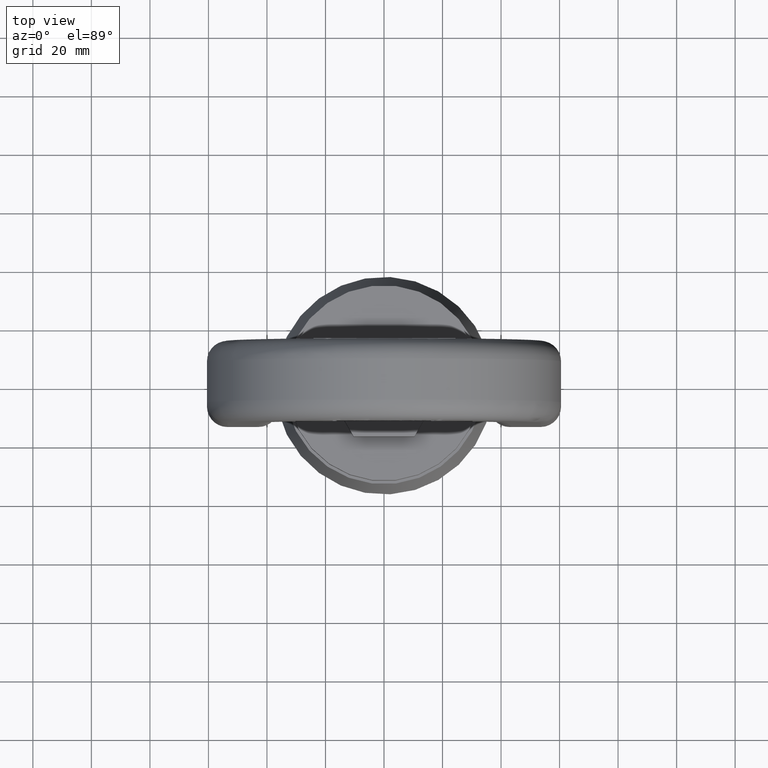
[diagram: clean part render]
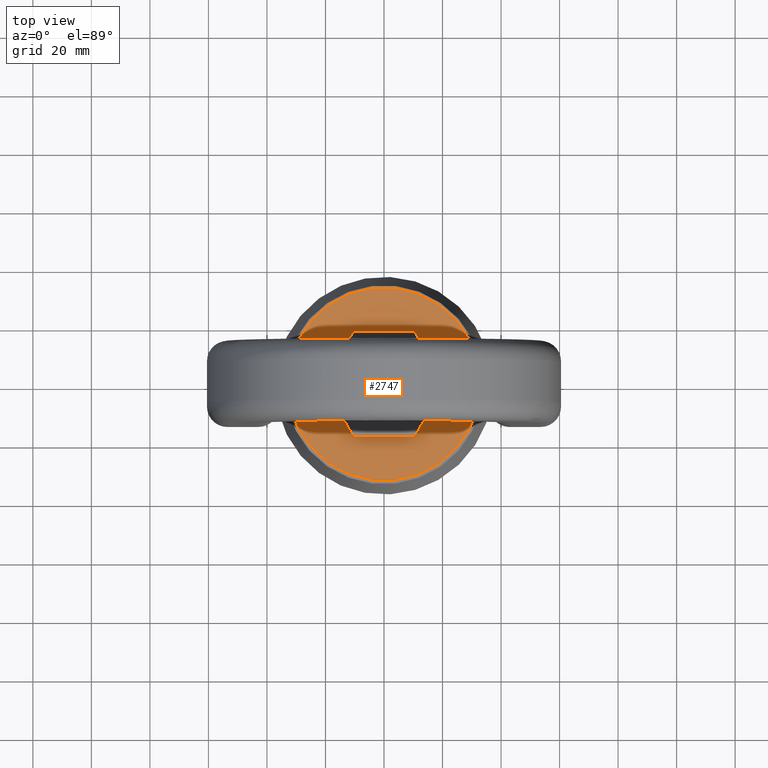
[diagram: same view with one face highlighted and labeled with its STEP entity id]
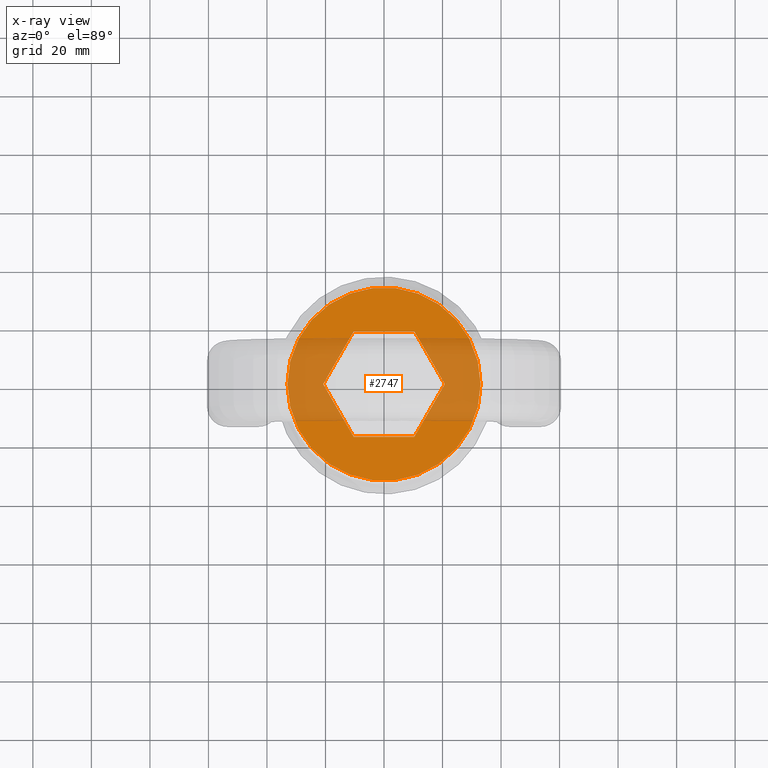
[diagram: x-ray of the same camera — body ghosted, the highlighted face saturated]
A machine part, top view. The second image highlights one B-rep face of the part: STEP entity #2747.
The next image is the same camera in x-ray: the body ghosted, the highlighted face saturated — about 38% of this face is hidden behind the body in this view.
In plain terms, the highlighted planar face has unit normal (0, 0, 1).
Its self-contained STEP definition (entity closure, byte-faithful):
#1755=LINE('',#6619,#2037);
#1756=LINE('',#6622,#2038);
#1757=LINE('',#6624,#2039);
#1758=LINE('',#6626,#2040);
#1759=LINE('',#6628,#2041);
#1760=LINE('',#6630,#2042);
#2037=VECTOR('',#5842,1.);
#2038=VECTOR('',#5843,1.);
#2039=VECTOR('',#5844,1.);
#2040=VECTOR('',#5845,1.);
#2041=VECTOR('',#5846,1.);
#2042=VECTOR('',#5847,1.);
#2628=PLANE('',#5618);
#2747=ADVANCED_FACE('',(#3015,#3016),#2628,.T.);
#3015=FACE_BOUND('',#3078,.T.);
#3016=FACE_BOUND('',#3079,.T.);
#3078=EDGE_LOOP('',(#3354,#3355,#3356,#3357,#3358,#3359));
#3079=EDGE_LOOP('',(#3360));
#3354=ORIENTED_EDGE('',*,*,#4951,.F.);
#3355=ORIENTED_EDGE('',*,*,#4952,.F.);
#3356=ORIENTED_EDGE('',*,*,#4953,.F.);
#3357=ORIENTED_EDGE('',*,*,#4954,.F.);
#3358=ORIENTED_EDGE('',*,*,#4955,.F.);
#3359=ORIENTED_EDGE('',*,*,#4956,.F.);
#3360=ORIENTED_EDGE('',*,*,#4950,.F.);
#4550=VERTEX_POINT('',#6617);
#4551=VERTEX_POINT('',#6620);
#4552=VERTEX_POINT('',#6621);
#4553=VERTEX_POINT('',#6623);
#4554=VERTEX_POINT('',#6625);
#4555=VERTEX_POINT('',#6627);
#4556=VERTEX_POINT('',#6629);
#4950=EDGE_CURVE('',#4550,#4550,#5552,.T.);
#4951=EDGE_CURVE('',#4551,#4552,#1755,.T.);
#4952=EDGE_CURVE('',#4553,#4551,#1756,.T.);
#4953=EDGE_CURVE('',#4554,#4553,#1757,.T.);
#4954=EDGE_CURVE('',#4555,#4554,#1758,.T.);
#4955=EDGE_CURVE('',#4556,#4555,#1759,.T.);
#4956=EDGE_CURVE('',#4552,#4556,#1760,.T.);
#5552=CIRCLE('',#5616,33.);
#5616=AXIS2_PLACEMENT_3D('',#6616,#5838,#5839);
#5618=AXIS2_PLACEMENT_3D('',#6631,#5848,#5849);
#5838=DIRECTION('',(0.,0.,-1.));
#5839=DIRECTION('',(-1.,0.,0.));
#5842=DIRECTION('',(0.5,-0.866025403784439,0.));
#5843=DIRECTION('',(-0.5,-0.866025403784439,0.));
#5844=DIRECTION('',(-1.,0.,0.));
#5845=DIRECTION('',(-0.5,0.866025403784439,0.));
#5846=DIRECTION('',(0.5,0.866025403784439,0.));
#5847=DIRECTION('',(1.,0.,0.));
#5848=DIRECTION('',(0.,0.,1.));
#5849=DIRECTION('',(1.,0.,0.));
#6616=CARTESIAN_POINT('',(0.,0.,54.));
#6617=CARTESIAN_POINT('',(-33.,0.,54.));
#6619=CARTESIAN_POINT('',(-20.7846096908265,0.,54.));
#6620=CARTESIAN_POINT('',(-20.7846096908265,0.,54.));
#6621=CARTESIAN_POINT('',(-10.3923048454133,-18.,54.));
#6622=CARTESIAN_POINT('',(-10.3923048454133,18.,54.));
#6623=CARTESIAN_POINT('',(-10.3923048454133,18.,54.));
#6624=CARTESIAN_POINT('',(10.3923048454133,18.,54.));
#6625=CARTESIAN_POINT('',(10.3923048454133,18.,54.));
#6626=CARTESIAN_POINT('',(20.7846096908265,0.,54.));
#6627=CARTESIAN_POINT('',(20.7846096908265,0.,54.));
#6628=CARTESIAN_POINT('',(10.3923048454133,-18.,54.));
#6629=CARTESIAN_POINT('',(10.3923048454133,-18.,54.));
#6630=CARTESIAN_POINT('',(-10.3923048454133,-18.,54.));
#6631=CARTESIAN_POINT('',(0.,33.,54.));